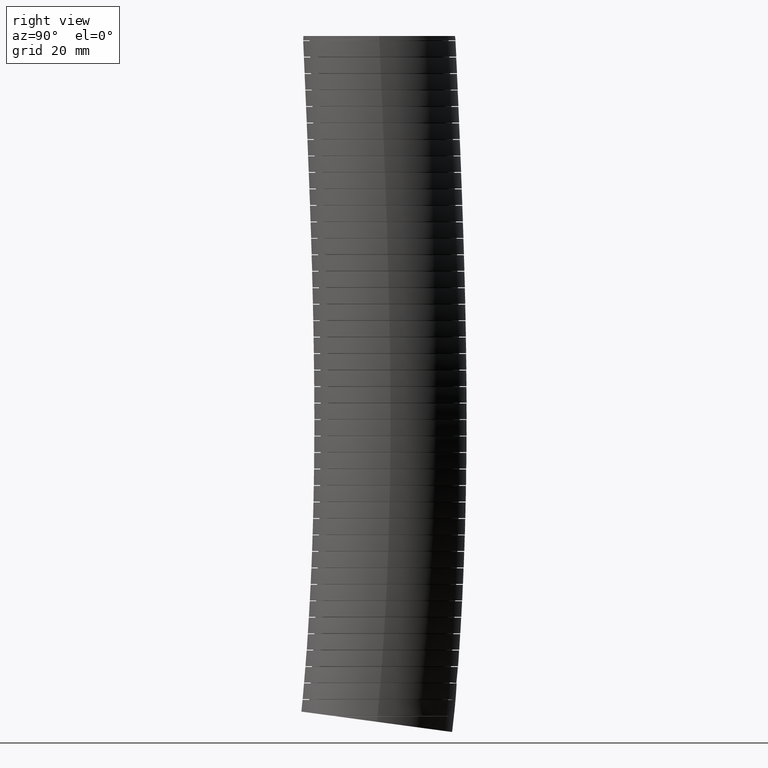
[diagram: clean part render]
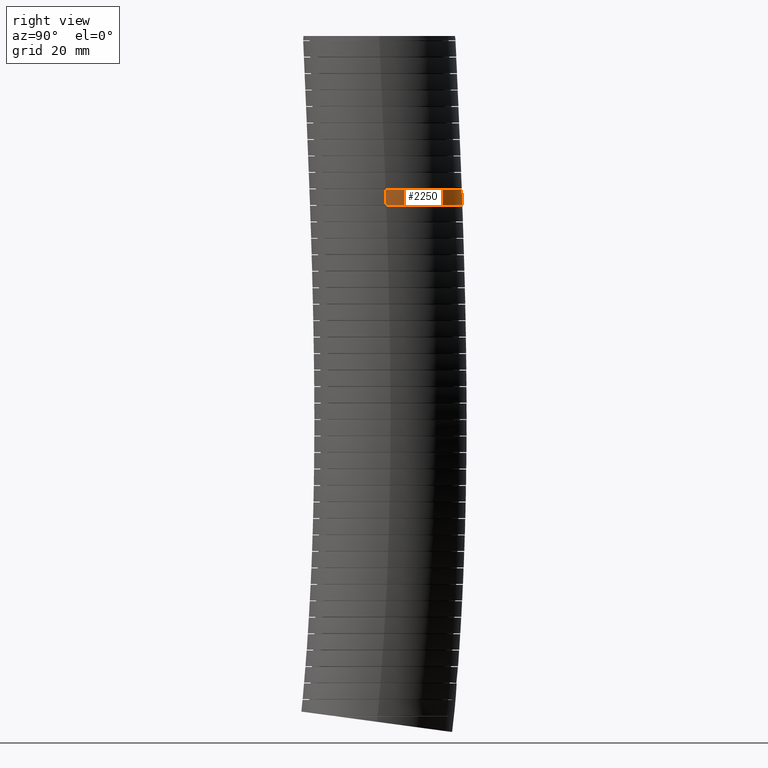
[diagram: same view with one face highlighted and labeled with its STEP entity id]
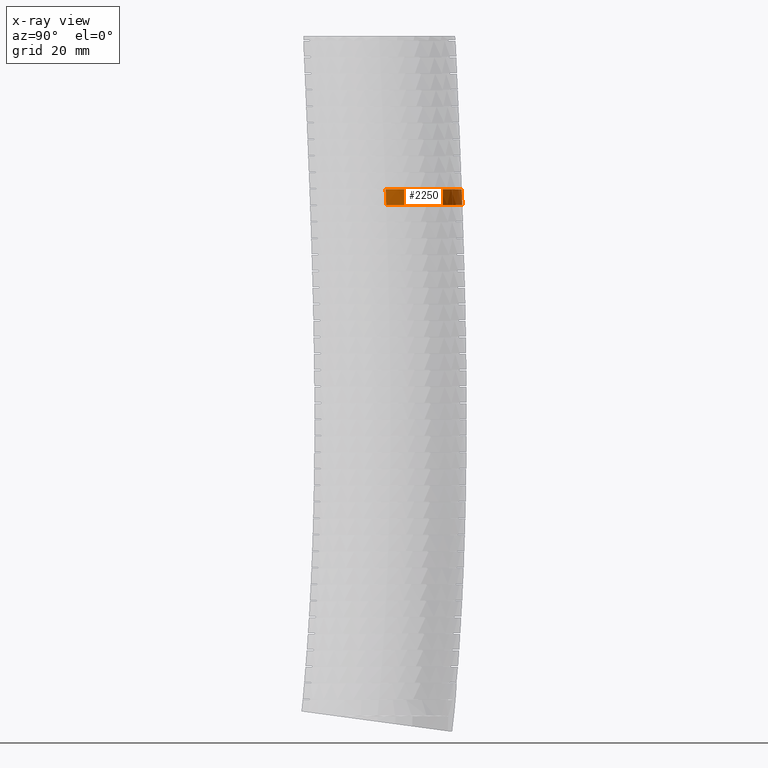
[diagram: x-ray of the same camera — body ghosted, the highlighted face saturated]
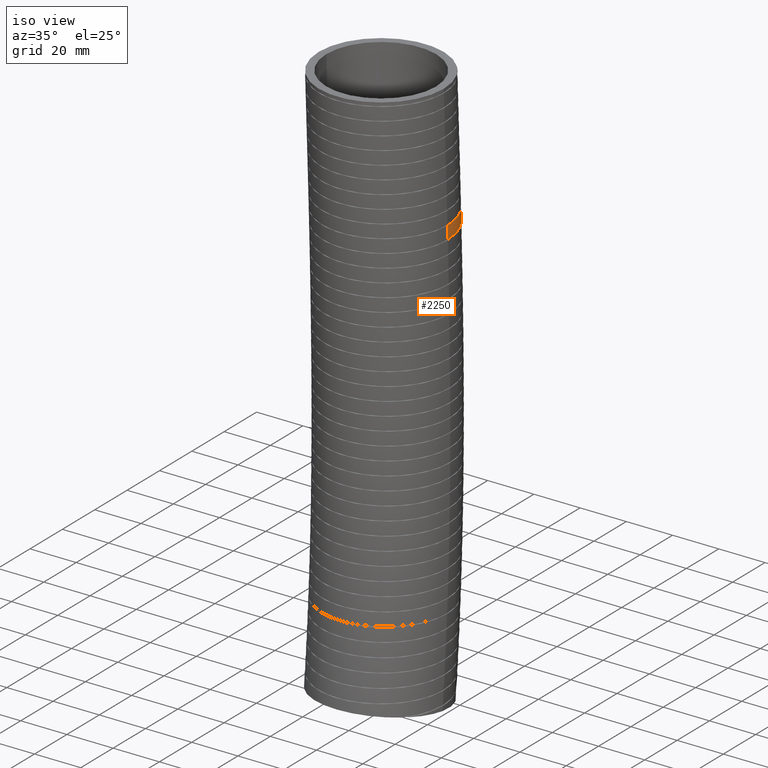
[diagram: same view with one face highlighted and labeled with its STEP entity id]
A machine part, right view. The second image highlights one B-rep face of the part: STEP entity #2250.
The next image is the same camera in x-ray: the body ghosted, the highlighted face saturated — about 0% of this face is hidden behind the body in this view.
A second angle (iso view) of the same face is appended — the face is thin or edge-on in the first view.
In plain terms, the highlighted face is a freeform B-spline surface patch.
Its self-contained STEP definition (entity closure, byte-faithful):
#2231 = EDGE_CURVE ( 'NONE', #6909, #6911, #11752, .T. ) ;
#2240 = ORIENTED_EDGE ( 'NONE', *, *, #2243, .T. ) ;
#2243 = EDGE_CURVE ( 'NONE', #6908, #6913, #12077, .T. ) ;
#2244 = ORIENTED_EDGE ( 'NONE', *, *, #2231, .T. ) ;
#2246 = ORIENTED_EDGE ( 'NONE', *, *, #6893, .T. ) ;
#2247 = ORIENTED_EDGE ( 'NONE', *, *, #6905, .F. ) ;
#2248 = EDGE_LOOP ( 'NONE', ( #2247, #2240, #2246, #2244 ) ) ;
#2250 = ADVANCED_FACE ( 'NONE', ( #12096 ), #12176, .T. ) ;
#6893 = EDGE_CURVE ( 'NONE', #6913, #6909, #17571, .T. ) ;
#6905 = EDGE_CURVE ( 'NONE', #6908, #6911, #17673, .T. ) ;
#6908 = VERTEX_POINT ( 'NONE', #17672 ) ;
#6909 = VERTEX_POINT ( 'NONE', #17670 ) ;
#6911 = VERTEX_POINT ( 'NONE', #17755 ) ;
#6913 = VERTEX_POINT ( 'NONE', #17747 ) ;
#11752 = B_SPLINE_CURVE_WITH_KNOTS ( 'NONE', 3,
 ( #11835, #11834, #11833, #11832, #11831, #11830, #11829, #11828, #11827, #11826, #11825, #11824, #11823, #11822, #11821, #11820, #11819, #11818, #11817, #11816, #11815, #11814, #11813, #11812, #11811, #11810, #11809, #11808, #11807, #11806, #11805, #11804, #11803, #11802, #11801, #11800, #11799, #11798, #11797, #11796, #11795, #11794, #11793, #11792, #11791, #11790, #11789, #11788, #11871, #11870, #11869, #11868, #11867, #11866, #11865, #11863, #11862, #11861, #11860, #11859, #11858 ),
 .UNSPECIFIED., .F., .F.,
 ( 4, 2, 2, 2, 2, 2, 2, 2, 2, 2, 2, 1, 2, 2, 2, 2, 2, 2, 2, 2, 2, 2, 2, 2, 2, 2, 2, 2, 2, 2, 4 ),
 ( 0.0000000000000000000, 0.005285916069839111800, 0.007928874104758662500, 0.01057183213967821700, 0.01585774820951732500, 0.01717922722697709900, 0.01850070624443687200, 0.02114366427935639900, 0.02642958034919546900, 0.02775105936665523200, 0.02907253838411499900, 0.03171549641903451800, 0.03435845445395403800, 0.03567993347141380800, 0.03700141248887357100, 0.04228732855871261000, 0.04493028659363213600, 0.04625176561109190000, 0.04757324462855165600, 0.05285916069839070900, 0.05418063971585047200, 0.05550211873331023500, 0.05814507676822978200, 0.06343099283806884200, 0.06607395087298836800, 0.06871690890790789500, 0.07135986694282742100, 0.07400282497774694800, 0.07928874104758600000, 0.08193169908250554100, 0.08457465711742505300 ),
 .UNSPECIFIED. ) ;
#11788 = CARTESIAN_POINT ( 'NONE',  ( -0.8012527069182833200, 0.8000719951749443200, -2.358033155165566900 ) ) ;
#11789 = CARTESIAN_POINT ( 'NONE',  ( -0.7777487616953526800, 0.8260281168610424900, -2.358033155165567800 ) ) ;
#11790 = CARTESIAN_POINT ( 'NONE',  ( -0.7031656965728327900, 0.9005769954705817900, -2.358033155165567800 ) ) ;
#11791 = CARTESIAN_POINT ( 'NONE',  ( -0.6493728491570210900, 0.9445995741654386000, -2.358033155165565100 ) ) ;
#11792 = CARTESIAN_POINT ( 'NONE',  ( -0.5628074390872877000, 1.002439256618482100, -2.358033155165564700 ) ) ;
#11793 = CARTESIAN_POINT ( 'NONE',  ( -0.5329657194460998300, 1.020343375983330000, -2.358033155165565600 ) ) ;
#11794 = CARTESIAN_POINT ( 'NONE',  ( -0.4866869524598878000, 1.045085254794098500, -2.358033155165566000 ) ) ;
#11795 = CARTESIAN_POINT ( 'NONE',  ( -0.4709660816402024300, 1.052998655882261000, -2.358033155165564700 ) ) ;
#11796 = CARTESIAN_POINT ( 'NONE',  ( -0.4392185045828095900, 1.068004244561664900, -2.358033155165564200 ) ) ;
#11797 = CARTESIAN_POINT ( 'NONE',  ( -0.4232213115459986200, 1.075085441528879500, -2.358033155165565600 ) ) ;
#11798 = CARTESIAN_POINT ( 'NONE',  ( -0.3426303323589647300, 1.108424465296250300, -2.358033155165566000 ) ) ;
#11799 = CARTESIAN_POINT ( 'NONE',  ( -0.2762387270916650800, 1.128540248928382200, -2.358033155165566400 ) ) ;
#11800 = CARTESIAN_POINT ( 'NONE',  ( -0.1908642380606712100, 1.145536959012909900, -2.358033155165566400 ) ) ;
#11801 = CARTESIAN_POINT ( 'NONE',  ( -0.1736690186356503200, 1.148525235995610400, -2.358033155165564200 ) ) ;
#11802 = CARTESIAN_POINT ( 'NONE',  ( -0.1390338795352257200, 1.153665799573105200, -2.358033155165565100 ) ) ;
#11803 = CARTESIAN_POINT ( 'NONE',  ( -0.1215450869421502700, 1.155821909188854400, -2.358033155165567300 ) ) ;
#11804 = CARTESIAN_POINT ( 'NONE',  ( -0.06917536962320607100, 1.160965043269390300, -2.358033155165567300 ) ) ;
#11805 = CARTESIAN_POINT ( 'NONE',  ( -0.03435419884579411100, 1.162647445519478000, -2.358033155165565600 ) ) ;
#11806 = CARTESIAN_POINT ( 'NONE',  ( 0.06984154916391353800, 1.162610490168263000, -2.358033155165565100 ) ) ;
#11807 = CARTESIAN_POINT ( 'NONE',  ( 0.1389509139368259900, 1.155855423843336300, -2.358033155165566000 ) ) ;
#11808 = CARTESIAN_POINT ( 'NONE',  ( 0.2248824252007541300, 1.138768603581977300, -2.358033155165566400 ) ) ;
#11809 = CARTESIAN_POINT ( 'NONE',  ( 0.2420822519272156900, 1.134904172506190100, -2.358033155165566400 ) ) ;
#11810 = CARTESIAN_POINT ( 'NONE',  ( 0.2760778344444098100, 1.126377815419927100, -2.358033155165566000 ) ) ;
#11811 = CARTESIAN_POINT ( 'NONE',  ( 0.2929095627022130200, 1.121710636261868500, -2.358033155165564200 ) ) ;
#11812 = CARTESIAN_POINT ( 'NONE',  ( 0.3429153253862798300, 1.106518425223398600, -2.358033155165563800 ) ) ;
#11813 = CARTESIAN_POINT ( 'NONE',  ( 0.4082868586691086900, 1.083092630753326400, -2.358033155165565600 ) ) ;
#11814 = CARTESIAN_POINT ( 'NONE',  ( 0.4710878669157981300, 1.053413223556045200, -2.358033155165565600 ) ) ;
#11815 = CARTESIAN_POINT ( 'NONE',  ( 0.5172099100857844300, 1.028772640126441900, -2.358033155165565100 ) ) ;
#11816 = CARTESIAN_POINT ( 'NONE',  ( 0.5324205155142430800, 1.020161568489055300, -2.358033155165566400 ) ) ;
#11817 = CARTESIAN_POINT ( 'NONE',  ( 0.5625087698867021800, 1.002129403572960900, -2.358033155165565600 ) ) ;
#11818 = CARTESIAN_POINT ( 'NONE',  ( 0.5773955440943933100, 0.9926988237987078900, -2.358033155165567300 ) ) ;
#11819 = CARTESIAN_POINT ( 'NONE',  ( 0.6501700948514662600, 0.9440394319626269600, -2.358033155165566000 ) ) ;
#11820 = CARTESIAN_POINT ( 'NONE',  ( 0.7037969730626708600, 0.8999526160769421000, -2.358033155165566000 ) ) ;
#11821 = CARTESIAN_POINT ( 'NONE',  ( 0.7775091534679661200, 0.8262643062759776900, -2.358033155165566400 ) ) ;
#11822 = CARTESIAN_POINT ( 'NONE',  ( 0.8009505030304650000, 0.8004328448186586200, -2.358033155165565100 ) ) ;
#11823 = CARTESIAN_POINT ( 'NONE',  ( 0.8343638930084136300, 0.7597213155442859000, -2.358033155165566000 ) ) ;
#11824 = CARTESIAN_POINT ( 'NONE',  ( 0.8451905925844515100, 0.7458417119434727100, -2.358033155165565600 ) ) ;
#11825 = CARTESIAN_POINT ( 'NONE',  ( 0.8660240324720174200, 0.7177327502763503100, -2.358033155165565600 ) ) ;
#11826 = CARTESIAN_POINT ( 'NONE',  ( 0.8760606936967755300, 0.7034676450340569000, -2.358033155165567800 ) ) ;
#11827 = CARTESIAN_POINT ( 'NONE',  ( 0.9243736256998559300, 0.6311055778262487600, -2.358033155165567800 ) ) ;
#11828 = CARTESIAN_POINT ( 'NONE',  ( 0.9570921978848605500, 0.5699285997433878300, -2.358033155165565100 ) ) ;
#11829 = CARTESIAN_POINT ( 'NONE',  ( 0.9971922590637949400, 0.4731877351056124600, -2.358033155165565100 ) ) ;
#11830 = CARTESIAN_POINT ( 'NONE',  ( 1.009093786171016300, 0.4399304260859522300, -2.358033155165565100 ) ) ;
#11831 = CARTESIAN_POINT ( 'NONE',  ( 1.029370283122568200, 0.3730158247187503300, -2.358033155165566000 ) ) ;
#11832 = CARTESIAN_POINT ( 'NONE',  ( 1.037802417562415000, 0.3392679685494702800, -2.358033155165566400 ) ) ;
#11833 = CARTESIAN_POINT ( 'NONE',  ( 1.058094705237324000, 0.2371721866368370100, -2.358033155165565600 ) ) ;
#11834 = CARTESIAN_POINT ( 'NONE',  ( 1.064999999999999100, 0.1679804361082707100, -2.358033154973498700 ) ) ;
#11835 = CARTESIAN_POINT ( 'NONE',  ( 1.064999999999999500, 0.09761269661807767100, -2.358033154973499200 ) ) ;
#11858 = CARTESIAN_POINT ( 'NONE',  ( -1.064999999999999900, 0.09761269663177218900, -2.358033155165566000 ) ) ;
#11859 = CARTESIAN_POINT ( 'NONE',  ( -1.064999999999999500, 0.1323670358052158300, -2.358033155165563800 ) ) ;
#11860 = CARTESIAN_POINT ( 'NONE',  ( -1.063303223276257100, 0.1672291159656191500, -2.358033155165564700 ) ) ;
#11861 = CARTESIAN_POINT ( 'NONE',  ( -1.056400876459213700, 0.2371760757009774800, -2.358033155165565100 ) ) ;
#11862 = CARTESIAN_POINT ( 'NONE',  ( -1.051230557813436000, 0.2718269832267128400, -2.358033155165565100 ) ) ;
#11863 = CARTESIAN_POINT ( 'NONE',  ( -1.030816290860893100, 0.3741742714476966600, -2.358033155165565100 ) ) ;
#11865 = CARTESIAN_POINT ( 'NONE',  ( -1.010686765899361000, 0.4405735439775921300, -2.358033155165566900 ) ) ;
#11866 = CARTESIAN_POINT ( 'NONE',  ( -0.9705918160399527000, 0.5373901705757007100, -2.358033155165567300 ) ) ;
#11867 = CARTESIAN_POINT ( 'NONE',  ( -0.9554802711206683600, 0.5693241653249022600, -2.358033155165565600 ) ) ;
#11868 = CARTESIAN_POINT ( 'NONE',  ( -0.9225131962464349100, 0.6309289167361285000, -2.358033155165565600 ) ) ;
#11869 = CARTESIAN_POINT ( 'NONE',  ( -0.9046153172648514500, 0.6607400078324592300, -2.358033155165565100 ) ) ;
#11870 = CARTESIAN_POINT ( 'NONE',  ( -0.8660494029751854000, 0.7184206410813813700, -2.358033155165565600 ) ) ;
#11871 = CARTESIAN_POINT ( 'NONE',  ( -0.8453812808398977200, 0.7462901223784613700, -2.358033155165566900 ) ) ;
#12042 = CARTESIAN_POINT ( 'NONE',  ( 0.01665625481487828900, 1.154667096476285500, -2.138185644968182000 ) ) ;
#12043 = CARTESIAN_POINT ( 'NONE',  ( -0.07111638338177776700, 1.154593061225847900, -2.138185644968182900 ) ) ;
#12044 = CARTESIAN_POINT ( 'NONE',  ( -0.1402398069599447800, 1.147657583917032400, -2.138185644968182400 ) ) ;
#12045 = CARTESIAN_POINT ( 'NONE',  ( -0.2423391789121387400, 1.127293434393235000, -2.138185644968182900 ) ) ;
#12046 = CARTESIAN_POINT ( 'NONE',  ( -0.2761060752074955800, 1.118833081928504200, -2.138185644968181500 ) ) ;
#12047 = CARTESIAN_POINT ( 'NONE',  ( -0.3263465602795866900, 1.103568031758402200, -2.138185644968182400 ) ) ;
#12048 = CARTESIAN_POINT ( 'NONE',  ( -0.3430709159917844100, 1.098032313540562500, -2.138185644968182000 ) ) ;
#12049 = CARTESIAN_POINT ( 'NONE',  ( -0.3760863839518437900, 1.086189242100728400, -2.138185644968182000 ) ) ;
#12050 = CARTESIAN_POINT ( 'NONE',  ( -0.3923860033641737900, 1.079882422196445800, -2.138185644968182900 ) ) ;
#12052 = CARTESIAN_POINT ( 'NONE',  ( -0.4728628604032711900, 1.046457692751911100, -2.138185644968183300 ) ) ;
#12053 = CARTESIAN_POINT ( 'NONE',  ( -0.5340054406173553300, 1.013721697370779400, -2.138185644968182000 ) ) ;
#12054 = CARTESIAN_POINT ( 'NONE',  ( -0.6063940869005675100, 0.9653231978605413300, -2.138185644968182900 ) ) ;
#12055 = CARTESIAN_POINT ( 'NONE',  ( -0.6206680234187039700, 0.9552662148115128600, -2.138185644968182900 ) ) ;
#12056 = CARTESIAN_POINT ( 'NONE',  ( -0.6488010766583868200, 0.9343842894650685700, -2.138185644968182400 ) ) ;
#12057 = CARTESIAN_POINT ( 'NONE',  ( -0.6626893809572367300, 0.9235331365506719300, -2.138185644968181100 ) ) ;
#12058 = CARTESIAN_POINT ( 'NONE',  ( -0.7032974881222473500, 0.8901560762142350900, -2.138185644968182000 ) ) ;
#12059 = CARTESIAN_POINT ( 'NONE',  ( -0.7290799137030172800, 0.8667314932293852500, -2.138185644968182900 ) ) ;
#12060 = CARTESIAN_POINT ( 'NONE',  ( -0.8026661126034960700, 0.7930362375584298900, -2.138185644968182900 ) ) ;
#12061 = CARTESIAN_POINT ( 'NONE',  ( -0.8467448820782159700, 0.7393768751907400200, -2.138185644968182900 ) ) ;
#12062 = CARTESIAN_POINT ( 'NONE',  ( -0.8954282035711139700, 0.6664667266009177700, -2.138185644968182400 ) ) ;
#12063 = CARTESIAN_POINT ( 'NONE',  ( -0.9048467501388600700, 0.6515756364054736700, -2.138185644968183800 ) ) ;
#12064 = CARTESIAN_POINT ( 'NONE',  ( -0.9228265901519046000, 0.6215324409060571900, -2.138185644968183800 ) ) ;
#12065 = CARTESIAN_POINT ( 'NONE',  ( -0.9314155084310845600, 0.6063409345510476500, -2.138185644968184200 ) ) ;
#12066 = CARTESIAN_POINT ( 'NONE',  ( -0.9559994012187649200, 0.5602652245248549400, -2.138185644968183800 ) ) ;
#12067 = CARTESIAN_POINT ( 'NONE',  ( -0.9708142988825764200, 0.5288810100129256500, -2.138185644968182900 ) ) ;
#12068 = CARTESIAN_POINT ( 'NONE',  ( -0.9973325964540451500, 0.4647942070068646900, -2.138185644968182900 ) ) ;
#12069 = CARTESIAN_POINT ( 'NONE',  ( -1.009036033641589300, 0.4320916343086097500, -2.138185644968182400 ) ) ;
#12070 = CARTESIAN_POINT ( 'NONE',  ( -1.024217914195830500, 0.3820321938476491900, -2.138185644968182400 ) ) ;
#12071 = CARTESIAN_POINT ( 'NONE',  ( -1.028882292213959300, 0.3651778189393732900, -2.138185644968182400 ) ) ;
#12072 = CARTESIAN_POINT ( 'NONE',  ( -1.037402972682405700, 0.3311266790946902900, -2.138185644968182400 ) ) ;
#12073 = CARTESIAN_POINT ( 'NONE',  ( -1.041251076829893300, 0.3139509398970207200, -2.138185644968182400 ) ) ;
#12074 = CARTESIAN_POINT ( 'NONE',  ( -1.058263995445397000, 0.2281638568089072200, -2.138185644968182400 ) ) ;
#12075 = CARTESIAN_POINT ( 'NONE',  ( -1.065000000000000200, 0.1590977124248245700, -2.138185644968182000 ) ) ;
#12076 = CARTESIAN_POINT ( 'NONE',  ( -1.064999999999999700, 0.08960387296799035600, -2.138185644968182000 ) ) ;
#12077 = B_SPLINE_CURVE_WITH_KNOTS ( 'NONE', 3,
 ( #12076, #12075, #12074, #12073, #12072, #12071, #12070, #12069, #12068, #12067, #12066, #12065, #12064, #12063, #12062, #12061, #12060, #12059, #12058, #12057, #12056, #12055, #12054, #12053, #12052, #12050, #12049, #12048, #12047, #12046, #12045, #12044, #12043, #12042, #12126, #12125, #12124, #12123, #12122, #12121, #12120, #12119, #12118, #12117, #12116, #12115, #12114, #12113, #12112, #12111, #12110, #12109, #12108, #12107, #12106, #12105, #12104, #12103, #12102, #12101, #12100, #12099 ),
 .UNSPECIFIED., .F., .F.,
 ( 4, 2, 2, 2, 2, 2, 2, 2, 2, 2, 2, 2, 2, 2, 2, 2, 2, 2, 2, 2, 2, 2, 2, 2, 2, 2, 2, 2, 2, 2, 4 ),
 ( 0.08457557280328927000, 0.08986036074883573000, 0.09118155773522235200, 0.09250275472160897300, 0.09514514869438221700, 0.09778754266715544700, 0.09910873965354206900, 0.1004299366399286900, 0.1057147245854751400, 0.1083571185582483700, 0.1096783155446349700, 0.1109995125310215800, 0.1162843004765680400, 0.1176054974629546500, 0.1189266944493412600, 0.1215690884221145000, 0.1268538763676609900, 0.1281750733540476300, 0.1294962703404342300, 0.1321386643132074800, 0.1347810582859807200, 0.1374234522587539600, 0.1427082402043004500, 0.1453506341770737000, 0.1479930281498469400, 0.1532778160953934000, 0.1559202100681666400, 0.1585626040409398600, 0.1612049980137131300, 0.1638473919864863500, 0.1691321799320328300 ),
 .UNSPECIFIED. ) ;
#12096 = FACE_OUTER_BOUND ( 'NONE', #2248, .T. ) ;
#12099 = CARTESIAN_POINT ( 'NONE',  ( 1.064999999999999700, 0.08960387295370594900, -2.138185644776100500 ) ) ;
#12100 = CARTESIAN_POINT ( 'NONE',  ( 1.064999999999999700, 0.1599565790427155400, -2.138185644776101000 ) ) ;
#12101 = CARTESIAN_POINT ( 'NONE',  ( 1.058097180473946700, 0.2295799197724759900, -2.138185644968182000 ) ) ;
#12102 = CARTESIAN_POINT ( 'NONE',  ( 1.037429075912468500, 0.3329251393668925000, -2.138185644968182000 ) ) ;
#12103 = CARTESIAN_POINT ( 'NONE',  ( 1.028846856275287300, 0.3669426387561737800, -2.138185644968182900 ) ) ;
#12104 = CARTESIAN_POINT ( 'NONE',  ( 1.008550011490762000, 0.4335126306747879000, -2.138185644968182400 ) ) ;
#12105 = CARTESIAN_POINT ( 'NONE',  ( 0.9968157253416065600, 0.4661656450809287300, -2.138185644968181500 ) ) ;
#12106 = CARTESIAN_POINT ( 'NONE',  ( 0.9702072751735773000, 0.5302204031682006300, -2.138185644968181500 ) ) ;
#12107 = CARTESIAN_POINT ( 'NONE',  ( 0.9553331761373627900, 0.5616221727455289500, -2.138185644968182000 ) ) ;
#12108 = CARTESIAN_POINT ( 'NONE',  ( 0.9223860056042556500, 0.6231508914274648300, -2.138185644968181500 ) ) ;
#12109 = CARTESIAN_POINT ( 'NONE',  ( 0.9042029227128598500, 0.6534234529513448500, -2.138185644968181500 ) ) ;
#12110 = CARTESIAN_POINT ( 'NONE',  ( 0.8458310999709716100, 0.7405418369705848400, -2.138185644968182000 ) ) ;
#12111 = CARTESIAN_POINT ( 'NONE',  ( 0.8017345303151229800, 0.7941070861182090200, -2.138185644968182000 ) ) ;
#12112 = CARTESIAN_POINT ( 'NONE',  ( 0.7279453343886055400, 0.8677965420978095400, -2.138185644968182000 ) ) ;
#12113 = CARTESIAN_POINT ( 'NONE',  ( 0.7020658813251607900, 0.8912421207347790400, -2.138185644968182000 ) ) ;
#12114 = CARTESIAN_POINT ( 'NONE',  ( 0.6476487771034062900, 0.9358179191921702800, -2.138185644968182000 ) ) ;
#12115 = CARTESIAN_POINT ( 'NONE',  ( 0.6195544419471769000, 0.9565838449810603100, -2.138185644968181500 ) ) ;
#12116 = CARTESIAN_POINT ( 'NONE',  ( 0.5327691446797990800, 1.014425076235337700, -2.138185644968181500 ) ) ;
#12117 = CARTESIAN_POINT ( 'NONE',  ( 0.4715714006009844000, 1.047108283562612700, -2.138185644968182000 ) ) ;
#12118 = CARTESIAN_POINT ( 'NONE',  ( 0.3746833873776452300, 1.087175792505415700, -2.138185644968181500 ) ) ;
#12119 = CARTESIAN_POINT ( 'NONE',  ( 0.3414203885573454700, 1.099043592495301900, -2.138185644968181100 ) ) ;
#12120 = CARTESIAN_POINT ( 'NONE',  ( 0.2745971312657469200, 1.119233259694425900, -2.138185644968181500 ) ) ;
#12121 = CARTESIAN_POINT ( 'NONE',  ( 0.2408779041823456400, 1.127632910701394700, -2.138185644968182400 ) ) ;
#12122 = CARTESIAN_POINT ( 'NONE',  ( 0.1728359023052464800, 1.141106046365864400, -2.138185644968182400 ) ) ;
#12123 = CARTESIAN_POINT ( 'NONE',  ( 0.1385131137751263200, 1.146179455321601400, -2.138185644968182000 ) ) ;
#12124 = CARTESIAN_POINT ( 'NONE',  ( 0.08657185174892183300, 1.151270593815320500, -2.138185644968181500 ) ) ;
#12125 = CARTESIAN_POINT ( 'NONE',  ( 0.06918178322068892200, 1.152547068776661500, -2.138185644968180600 ) ) ;
#12126 = CARTESIAN_POINT ( 'NONE',  ( 0.03424659591549926400, 1.154245532946210000, -2.138185644968181100 ) ) ;
#12176 =( BOUNDED_SURFACE ( )  B_SPLINE_SURFACE ( 3, 3, ( 
 ( #12222, #12221, #12220, #12219, #12218, #12217 ),
 ( #12216, #12215, #12214, #12213, #12212, #12211 ),
 ( #12210, #12209, #12208, #12207, #12206, #12205 ),
 ( #12203, #12202, #12201, #12200, #12199, #12198 ),
 ( #12197, #12196, #12195, #12193, #12192, #12261 ),
 ( #12260, #12259, #12258, #12257, #12256, #12255 ),
 ( #12254, #12253, #12252, #12251, #12250, #12249 ) ),
 .UNSPECIFIED., .F., .F., .F. ) 
 B_SPLINE_SURFACE_WITH_KNOTS ( ( 4, 3, 4 ),
 ( 4, 1, 1, 4 ),
 ( 0.0000000000000000000, 0.5000000000000000000, 1.000000000000000000 ),
 ( 0.0000000000000000000, 0.5600000000000001600, 0.9402239691641354200, 1.000000000000000000 ),
 .UNSPECIFIED. ) 
 GEOMETRIC_REPRESENTATION_ITEM ( )  RATIONAL_B_SPLINE_SURFACE ( (
 ( 1.000000000000000000, 1.000000000000000000, 1.000000000000000200, 1.000000000000000200, 1.000000000000000200, 1.000000000000000200),
 ( 0.3333333333333333100, 0.3333333333333333100, 0.3333333333333332600, 0.3333333333333334300, 0.3333333333333333700, 0.3333333333333333700),
 ( 0.3333333333333333100, 0.3333333333333333100, 0.3333333333333332600, 0.3333333333333334300, 0.3333333333333333700, 0.3333333333333333700),
 ( 1.000000000000000000, 1.000000000000000000, 1.000000000000000200, 1.000000000000000200, 1.000000000000000200, 1.000000000000000200),
 ( 0.3333333333333333100, 0.3333333333333333100, 0.3333333333333332600, 0.3333333333333334300, 0.3333333333333333700, 0.3333333333333333700),
 ( 0.3333333333333333100, 0.3333333333333333100, 0.3333333333333332600, 0.3333333333333334300, 0.3333333333333333700, 0.3333333333333333700),
 ( 1.000000000000000000, 1.000000000000000000, 1.000000000000000200, 1.000000000000000200, 1.000000000000000200, 1.000000000000000200) ) ) 
 REPRESENTATION_ITEM ( '' )  SURFACE ( )  );
#12192 = CARTESIAN_POINT ( 'NONE',  ( -1.064999999999999700, 2.098892687478189700, -9.655694098161024600 ) ) ;
#12193 = CARTESIAN_POINT ( 'NONE',  ( -1.064999999999999500, 2.232156786707371500, -8.185435810711052100 ) ) ;
#12195 = CARTESIAN_POINT ( 'NONE',  ( -1.064999999999999500, 2.345283078702082900, -4.843727318243294300 ) ) ;
#12196 = CARTESIAN_POINT ( 'NONE',  ( -1.064999999999999900, 2.210360350555081500, -1.808054899781085700 ) ) ;
#12197 = CARTESIAN_POINT ( 'NONE',  ( -1.064999999999999900, 2.129999999999999900, 0.0000000000000000000 ) ) ;
#12198 = CARTESIAN_POINT ( 'NONE',  ( -1.064999999999999700, -0.02999999999999980100, -9.569999999999996700 ) ) ;
#12199 = CARTESIAN_POINT ( 'NONE',  ( -1.064999999999999700, -0.01282253193203157000, -9.380021792021830500 ) ) ;
#12200 = CARTESIAN_POINT ( 'NONE',  ( -1.064999999999999700, 0.1136175452062335600, -7.981628316551387500 ) ) ;
#12201 = CARTESIAN_POINT ( 'NONE',  ( -1.064999999999999500, 0.2122813731536105100, -4.795410929656176400 ) ) ;
#12202 = CARTESIAN_POINT ( 'NONE',  ( -1.064999999999999900, 0.07923988111738802800, -1.790019474294677300 ) ) ;
#12203 = CARTESIAN_POINT ( 'NONE',  ( -1.064999999999999900, 1.304248841091931100E-016, 0.0000000000000000000 ) ) ;
#12205 = CARTESIAN_POINT ( 'NONE',  ( -1.064999999999999900, -2.140788144512650400, -9.284564527458751800 ) ) ;
#12206 = CARTESIAN_POINT ( 'NONE',  ( -1.064999999999999900, -2.124537751342253000, -9.104349485882636400 ) ) ;
#12207 = CARTESIAN_POINT ( 'NONE',  ( -1.064999999999999700, -2.004921696294905200, -7.777820822391721100 ) ) ;
#12208 = CARTESIAN_POINT ( 'NONE',  ( -1.065000000000000400, -1.920720332394860500, -4.747094541069063900 ) ) ;
#12209 = CARTESIAN_POINT ( 'NONE',  ( -1.065000000000000200, -2.051880588320306000, -1.771984048808268300 ) ) ;
#12210 = CARTESIAN_POINT ( 'NONE',  ( -1.065000000000000200, -2.129999999999999900, 0.0000000000000000000 ) ) ;
#12211 = CARTESIAN_POINT ( 'NONE',  ( 1.064999999999999700, -2.140788144512650400, -9.284564527458751800 ) ) ;
#12212 = CARTESIAN_POINT ( 'NONE',  ( 1.064999999999999700, -2.124537751342253000, -9.104349485882636400 ) ) ;
#12213 = CARTESIAN_POINT ( 'NONE',  ( 1.064999999999999700, -2.004921696294905200, -7.777820822391721100 ) ) ;
#12214 = CARTESIAN_POINT ( 'NONE',  ( 1.064999999999999900, -1.920720332394860500, -4.747094541069063900 ) ) ;
#12215 = CARTESIAN_POINT ( 'NONE',  ( 1.065000000000000200, -2.051880588320306000, -1.771984048808268300 ) ) ;
#12216 = CARTESIAN_POINT ( 'NONE',  ( 1.064999999999999900, -2.129999999999999900, 0.0000000000000000000 ) ) ;
#12217 = CARTESIAN_POINT ( 'NONE',  ( 1.064999999999999700, -0.02999999999999993000, -9.569999999999996700 ) ) ;
#12218 = CARTESIAN_POINT ( 'NONE',  ( 1.064999999999999700, -0.01282253193203170200, -9.380021792021830500 ) ) ;
#12219 = CARTESIAN_POINT ( 'NONE',  ( 1.064999999999999700, 0.1136175452062334300, -7.981628316551387500 ) ) ;
#12220 = CARTESIAN_POINT ( 'NONE',  ( 1.064999999999999500, 0.2122813731536103700, -4.795410929656176400 ) ) ;
#12221 = CARTESIAN_POINT ( 'NONE',  ( 1.064999999999999900, 0.07923988111738790300, -1.790019474294677300 ) ) ;
#12222 = CARTESIAN_POINT ( 'NONE',  ( 1.064999999999999900, 0.0000000000000000000, 0.0000000000000000000 ) ) ;
#12249 = CARTESIAN_POINT ( 'NONE',  ( 1.064999999999999700, -0.02999999999999993000, -9.569999999999996700 ) ) ;
#12250 = CARTESIAN_POINT ( 'NONE',  ( 1.064999999999999700, -0.01282253193203170200, -9.380021792021830500 ) ) ;
#12251 = CARTESIAN_POINT ( 'NONE',  ( 1.064999999999999700, 0.1136175452062334300, -7.981628316551387500 ) ) ;
#12252 = CARTESIAN_POINT ( 'NONE',  ( 1.064999999999999500, 0.2122813731536103700, -4.795410929656176400 ) ) ;
#12253 = CARTESIAN_POINT ( 'NONE',  ( 1.064999999999999900, 0.07923988111738790300, -1.790019474294677300 ) ) ;
#12254 = CARTESIAN_POINT ( 'NONE',  ( 1.064999999999999900, 0.0000000000000000000, 0.0000000000000000000 ) ) ;
#12255 = CARTESIAN_POINT ( 'NONE',  ( 1.064999999999999700, 2.080788144512650400, -9.855435472541238100 ) ) ;
#12256 = CARTESIAN_POINT ( 'NONE',  ( 1.064999999999999700, 2.098892687478189700, -9.655694098161024600 ) ) ;
#12257 = CARTESIAN_POINT ( 'NONE',  ( 1.064999999999999700, 2.232156786707371500, -8.185435810711052100 ) ) ;
#12258 = CARTESIAN_POINT ( 'NONE',  ( 1.064999999999999900, 2.345283078702082900, -4.843727318243294300 ) ) ;
#12259 = CARTESIAN_POINT ( 'NONE',  ( 1.065000000000000200, 2.210360350555081500, -1.808054899781085700 ) ) ;
#12260 = CARTESIAN_POINT ( 'NONE',  ( 1.064999999999999900, 2.129999999999999900, 0.0000000000000000000 ) ) ;
#12261 = CARTESIAN_POINT ( 'NONE',  ( -1.064999999999999700, 2.080788144512650400, -9.855435472541238100 ) ) ;
#17567 = CARTESIAN_POINT ( 'NONE',  ( 1.064999999999999500, 0.09761269661807767100, -2.358033154973499200 ) ) ;
#17568 = CARTESIAN_POINT ( 'NONE',  ( 1.064999999999999900, 0.09500025478212582900, -2.284753090415713800 ) ) ;
#17569 = CARTESIAN_POINT ( 'NONE',  ( 1.064999999999999900, 0.09232881291335780200, -2.211470508774524600 ) ) ;
#17570 = CARTESIAN_POINT ( 'NONE',  ( 1.064999999999999700, 0.08960387295370594900, -2.138185644776100500 ) ) ;
#17571 = B_SPLINE_CURVE_WITH_KNOTS ( 'NONE', 3,
 ( #17570, #17569, #17568, #17567 ),
 .UNSPECIFIED., .F., .F.,
 ( 4, 4 ),
 ( 0.2229966060460854800, 0.2459304077273467800 ),
 .UNSPECIFIED. ) ;
#17670 = CARTESIAN_POINT ( 'NONE',  ( 1.064999999999999500, 0.09761269661807767100, -2.358033154973499200 ) ) ;
#17672 = CARTESIAN_POINT ( 'NONE',  ( -1.064999999999999700, 0.08960387296799035600, -2.138185644968182000 ) ) ;
#17673 = B_SPLINE_CURVE_WITH_KNOTS ( 'NONE', 3,
 ( #17754, #17753, #17752, #17750 ),
 .UNSPECIFIED., .F., .F.,
 ( 4, 4 ),
 ( 0.2229966060661498800, 0.2459304077474087100 ),
 .UNSPECIFIED. ) ;
#17747 = CARTESIAN_POINT ( 'NONE',  ( 1.064999999999999700, 0.08960387295370594900, -2.138185644776100500 ) ) ;
#17750 = CARTESIAN_POINT ( 'NONE',  ( -1.064999999999999900, 0.09761269663177218900, -2.358033155165566000 ) ) ;
#17752 = CARTESIAN_POINT ( 'NONE',  ( -1.064999999999999700, 0.09500025478908537300, -2.284753090608036000 ) ) ;
#17753 = CARTESIAN_POINT ( 'NONE',  ( -1.064999999999999700, 0.09232881292041604500, -2.211470508966858700 ) ) ;
#17754 = CARTESIAN_POINT ( 'NONE',  ( -1.064999999999999700, 0.08960387296799035600, -2.138185644968182000 ) ) ;
#17755 = CARTESIAN_POINT ( 'NONE',  ( -1.064999999999999900, 0.09761269663177218900, -2.358033155165566000 ) ) ;